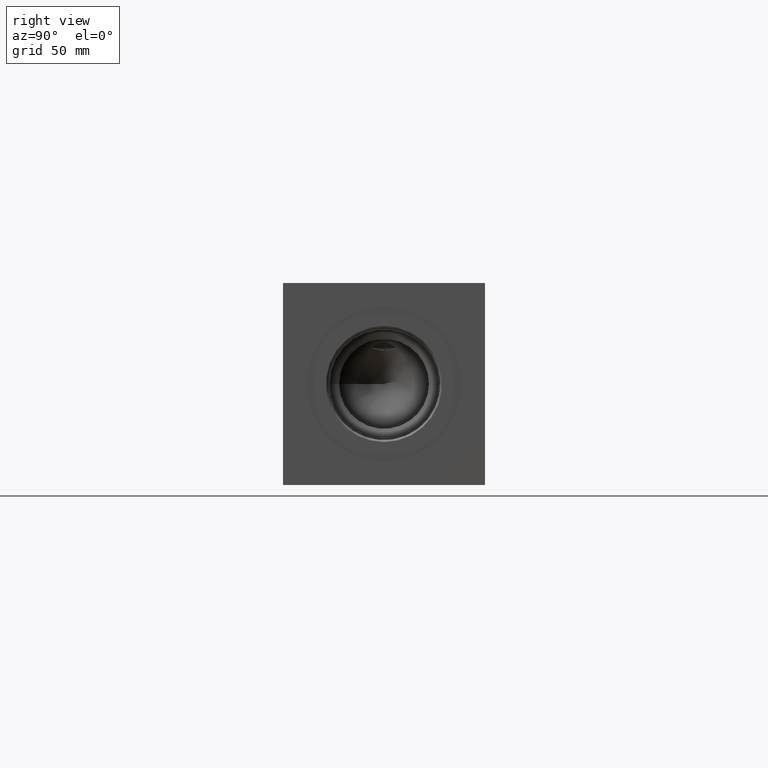
[diagram: clean part render]
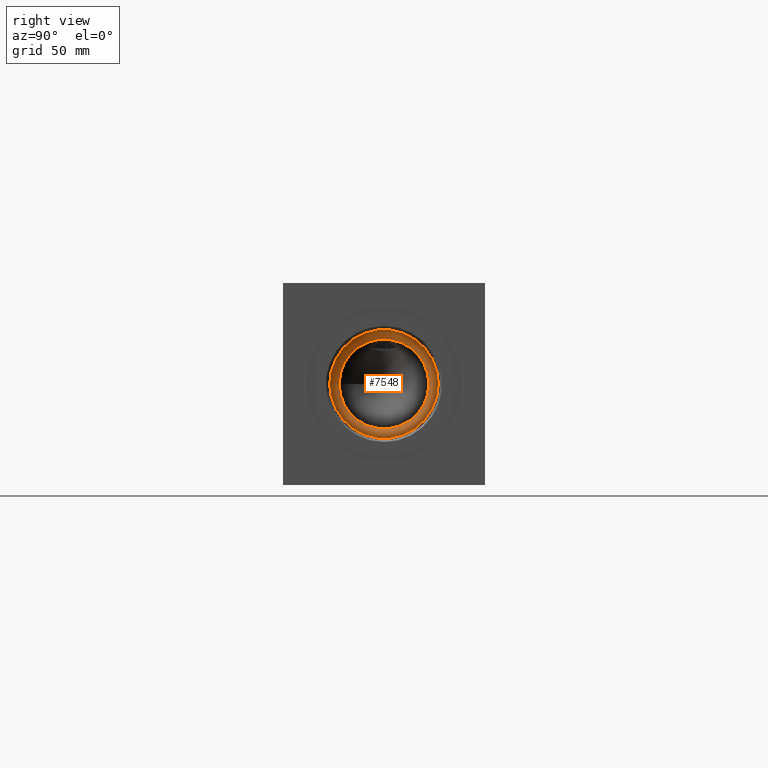
[diagram: same view with one face highlighted and labeled with its STEP entity id]
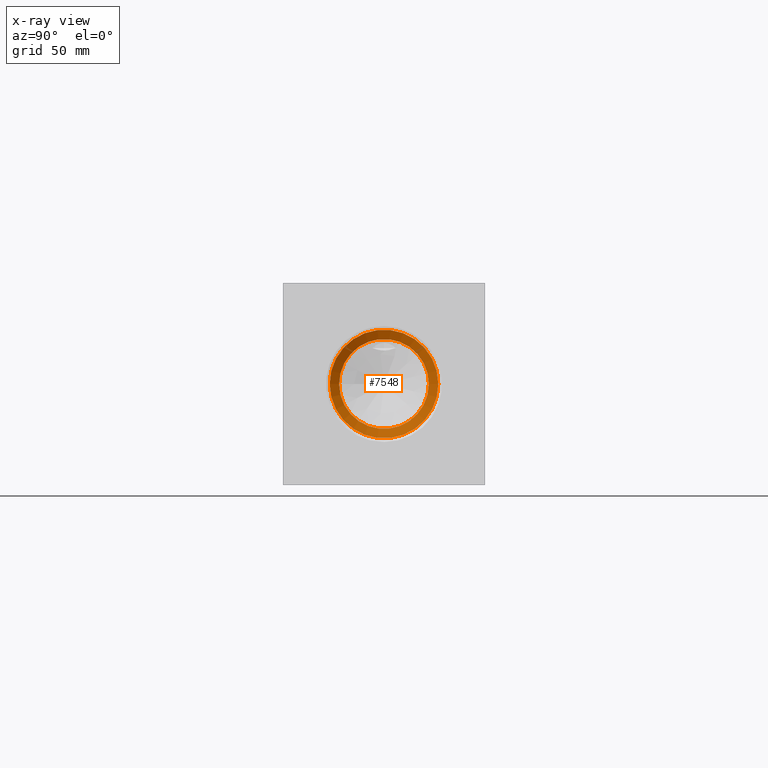
[diagram: x-ray of the same camera — body ghosted, the highlighted face saturated]
A machine part, right view. The second image highlights one B-rep face of the part: STEP entity #7548.
The next image is the same camera in x-ray: the body ghosted, the highlighted face saturated — about 0% of this face is hidden behind the body in this view.
In plain terms, the highlighted conical surface has half-angle 66 deg.
Its self-contained STEP definition (entity closure, byte-faithful):
#27=CONICAL_SURFACE('',#7922,15.36065,1.15191730631626);
#145=CIRCLE('',#7921,25.4);
#146=CIRCLE('',#7923,30.7213);
#147=CIRCLE('',#7924,30.7213);
#904=FACE_OUTER_BOUND('',#1326,.T.);
#1326=EDGE_LOOP('',(#6514,#6515,#6516,#6517,#6518));
#2063=LINE('',#12893,#2785);
#2785=VECTOR('',#9357,15.36065);
#3469=VERTEX_POINT('',#12886);
#3470=VERTEX_POINT('',#12890);
#3471=VERTEX_POINT('',#12891);
#4497=EDGE_CURVE('',#3469,#3469,#145,.T.);
#4499=EDGE_CURVE('',#3470,#3471,#146,.T.);
#4500=EDGE_CURVE('',#3471,#3469,#2063,.T.);
#4501=EDGE_CURVE('',#3471,#3470,#147,.T.);
#6514=ORIENTED_EDGE('',*,*,#4499,.T.);
#6515=ORIENTED_EDGE('',*,*,#4500,.T.);
#6516=ORIENTED_EDGE('',*,*,#4497,.T.);
#6517=ORIENTED_EDGE('',*,*,#4500,.F.);
#6518=ORIENTED_EDGE('',*,*,#4501,.T.);
#7548=ADVANCED_FACE('',(#904),#27,.F.);
#7921=AXIS2_PLACEMENT_3D('',#12887,#9350,#9351);
#7922=AXIS2_PLACEMENT_3D('',#12889,#9353,#9354);
#7923=AXIS2_PLACEMENT_3D('',#12892,#9355,#9356);
#7924=AXIS2_PLACEMENT_3D('',#12894,#9358,#9359);
#9350=DIRECTION('center_axis',(-1.,0.,0.));
#9351=DIRECTION('ref_axis',(0.,1.,0.));
#9353=DIRECTION('center_axis',(1.,0.,0.));
#9354=DIRECTION('ref_axis',(0.,1.,0.));
#9355=DIRECTION('center_axis',(1.,0.,0.));
#9356=DIRECTION('ref_axis',(0.,1.,0.));
#9357=DIRECTION('',(-0.4067366430758,0.913545457642601,1.11877052057761E-16));
#9358=DIRECTION('center_axis',(1.,0.,0.));
#9359=DIRECTION('ref_axis',(0.,1.,0.));
#12886=CARTESIAN_POINT('',(354.818404596868,31.75,57.15));
#12887=CARTESIAN_POINT('Origin',(354.818404596868,57.15,57.15));
#12889=CARTESIAN_POINT('Origin',(350.348597995015,57.15,57.15));
#12890=CARTESIAN_POINT('',(357.1876,87.8713,57.15));
#12891=CARTESIAN_POINT('',(357.1876,26.4287,57.15));
#12892=CARTESIAN_POINT('Origin',(357.1876,57.15,57.15));
#12893=CARTESIAN_POINT('',(350.348597995015,41.78935,57.15));
#12894=CARTESIAN_POINT('Origin',(357.1876,57.15,57.15));